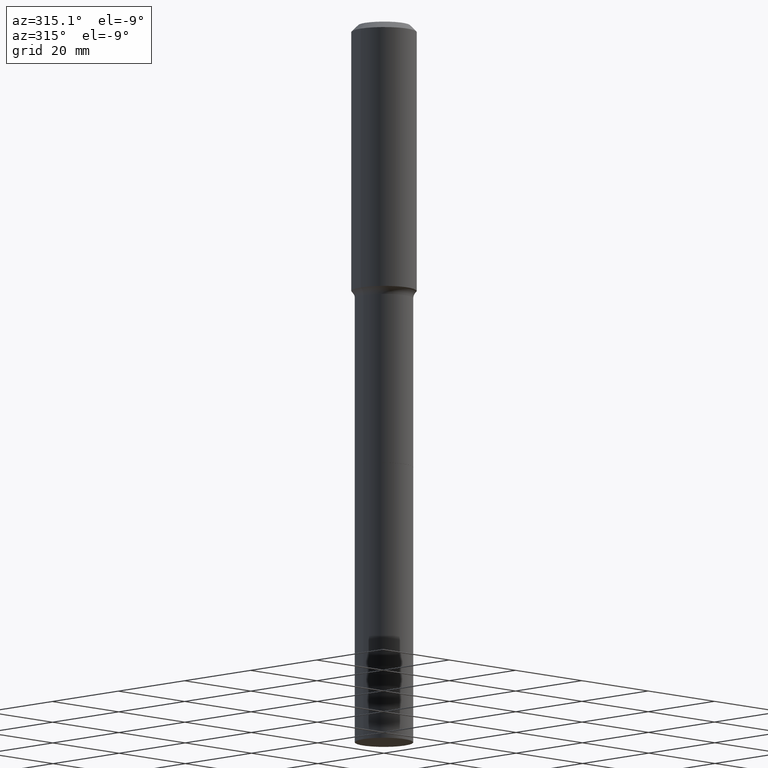
[diagram: clean part render]
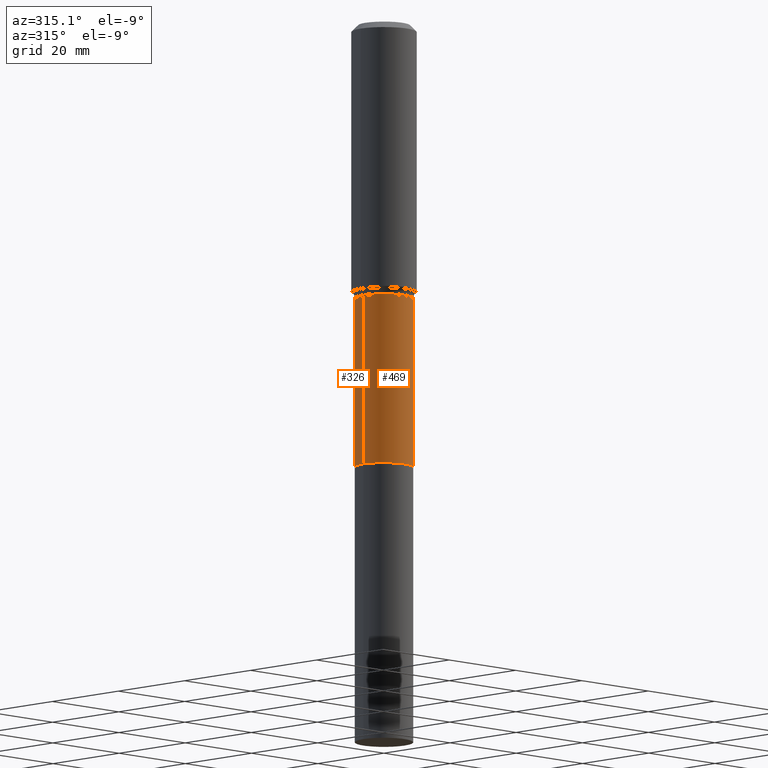
[diagram: same view with one multi-face feature highlighted, each face labeled with its STEP entity id]
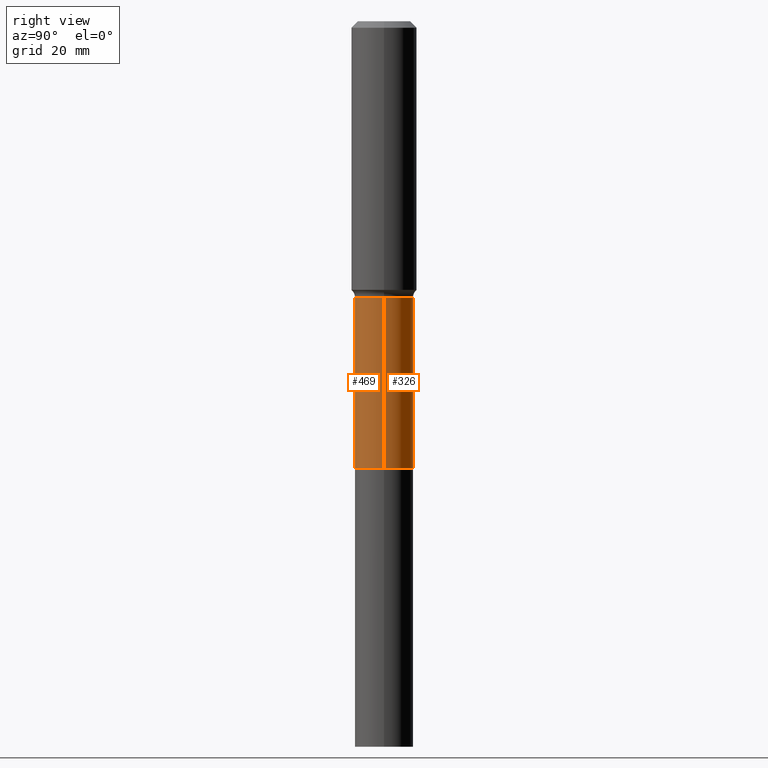
[diagram: same view with one multi-face feature highlighted, each face labeled with its STEP entity id]
A machine part, auxiliary view. The highlighted faces form ONE feature: a constant-radius fillet chain: 2 tangent blend faces with common blend radius 6.2497 mm. The faces share edges in the B-rep.
A second angle (right view) of the same feature is appended — it is thin or edge-on in the first view.
Their STEP definitions:
[1] entity #326 (Cylinder):
#18 = DIRECTION ( 'NONE',  ( -2.445468806185136597E-29, 3.491481338843145583E-15, 1.000000000000000000 ) ) ;
#19 = DIRECTION ( 'NONE',  ( -2.445468806185136597E-29, 3.491481338843145583E-15, 1.000000000000000000 ) ) ;
#23 = DIRECTION ( 'NONE',  ( -2.445468806185136877E-29, 3.491481338843145188E-15, 1.000000000000000000 ) ) ;
#25 = VERTEX_POINT ( 'NONE', #253 ) ;
#31 = VERTEX_POINT ( 'NONE', #168 ) ;
#53 = VECTOR ( 'NONE', #324, 39.37007874015748143 ) ;
#58 = DIRECTION ( 'NONE',  ( -2.445468806185136597E-29, 3.491481338843145583E-15, 1.000000000000000000 ) ) ;
#63 = ORIENTED_EDGE ( 'NONE', *, *, #178, .F. ) ;
#69 = CARTESIAN_POINT ( 'NONE',  ( 0.2460500000000000742, -1.484577865276104695E-14, -3.759899999999999576 ) ) ;
#80 = LINE ( 'NONE', #208, #53 ) ;
#97 = CARTESIAN_POINT ( 'NONE',  ( 9.194718164375493878E-29, -1.312762068591634082E-14, -3.759899999999999576 ) ) ;
#115 = ORIENTED_EDGE ( 'NONE', *, *, #316, .F. ) ;
#156 = ORIENTED_EDGE ( 'NONE', *, *, #499, .T. ) ;
#168 = CARTESIAN_POINT ( 'NONE',  ( -0.2460500000000000742, -8.869828072285101626E-15, -3.759899999999999576 ) ) ;
#178 = EDGE_CURVE ( 'NONE', #426, #25, #487, .T. ) ;
#186 = AXIS2_PLACEMENT_3D ( 'NONE', #353, #19, #509 ) ;
#196 = CARTESIAN_POINT ( 'NONE',  ( 0.2460499999999999632, -1.718157966844705541E-15, 1.199783295684589923E-29 ) ) ;
#203 = EDGE_CURVE ( 'NONE', #319, #31, #239, .T. ) ;
#208 = CARTESIAN_POINT ( 'NONE',  ( -0.2460499999999999632, 1.748290401337726246E-15, -1.210303978957219394E-29 ) ) ;
#239 = CIRCLE ( 'NONE', #332, 0.2460500000000000742 ) ;
#253 = CARTESIAN_POINT ( 'NONE',  ( -0.2460499999999998799, -8.869828072285103204E-15, -2.322400000000000020 ) ) ;
#315 = VECTOR ( 'NONE', #23, 39.37007874015748143 ) ;
#316 = EDGE_CURVE ( 'NONE', #319, #426, #458, .T. ) ;
#319 = VERTEX_POINT ( 'NONE', #69 ) ;
#324 = DIRECTION ( 'NONE',  ( -2.445468806185136877E-29, 3.491481338843145188E-15, 1.000000000000000000 ) ) ;
#326 = ADVANCED_FACE ( 'NONE', ( #425 ), #470, .T. ) ;
#329 = CARTESIAN_POINT ( 'NONE',  ( 5.679356755484361141E-29, -8.108616261329321631E-15, -2.322400000000000020 ) ) ;
#332 = AXIS2_PLACEMENT_3D ( 'NONE', #97, #18, #414 ) ;
#353 = CARTESIAN_POINT ( 'NONE',  ( 0.000000000000000000, 0.000000000000000000, 0.000000000000000000 ) ) ;
#358 = EDGE_LOOP ( 'NONE', ( #443, #156, #63, #115 ) ) ;
#366 = CARTESIAN_POINT ( 'NONE',  ( 0.2460499999999998799, -9.826774228174027764E-15, -2.322400000000000020 ) ) ;
#414 = DIRECTION ( 'NONE',  ( 1.000000000000000000, -6.982962677686264344E-15, 0.000000000000000000 ) ) ;
#425 = FACE_OUTER_BOUND ( 'NONE', #358, .T. ) ;
#426 = VERTEX_POINT ( 'NONE', #366 ) ;
#443 = ORIENTED_EDGE ( 'NONE', *, *, #203, .T. ) ;
#451 = DIRECTION ( 'NONE',  ( 1.000000000000000000, -6.982962677686269866E-15, 0.000000000000000000 ) ) ;
#458 = LINE ( 'NONE', #196, #315 ) ;
#462 = AXIS2_PLACEMENT_3D ( 'NONE', #329, #58, #451 ) ;
#470 = CYLINDRICAL_SURFACE ( 'NONE', #186, 0.2460499999999999632 ) ;
#487 = CIRCLE ( 'NONE', #462, 0.2460499999999998799 ) ;
#499 = EDGE_CURVE ( 'NONE', #31, #25, #80, .T. ) ;
#509 = DIRECTION ( 'NONE',  ( 1.000000000000000000, -6.982962677686265922E-15, 4.876176775795936353E-29 ) ) ;
[2] entity #469 (Cylinder):
#23 = DIRECTION ( 'NONE',  ( -2.445468806185136877E-29, 3.491481338843145188E-15, 1.000000000000000000 ) ) ;
#25 = VERTEX_POINT ( 'NONE', #253 ) ;
#31 = VERTEX_POINT ( 'NONE', #168 ) ;
#37 = DIRECTION ( 'NONE',  ( 1.000000000000000000, -6.982962677686265922E-15, 4.876176775795936353E-29 ) ) ;
#47 = ORIENTED_EDGE ( 'NONE', *, *, #316, .T. ) ;
#53 = VECTOR ( 'NONE', #324, 39.37007874015748143 ) ;
#67 = ORIENTED_EDGE ( 'NONE', *, *, #511, .T. ) ;
#69 = CARTESIAN_POINT ( 'NONE',  ( 0.2460500000000000742, -1.484577865276104695E-14, -3.759899999999999576 ) ) ;
#80 = LINE ( 'NONE', #208, #53 ) ;
#90 = DIRECTION ( 'NONE',  ( 1.000000000000000000, -6.982962677686264344E-15, 0.000000000000000000 ) ) ;
#128 = DIRECTION ( 'NONE',  ( -2.445468806185136597E-29, 3.491481338843145583E-15, 1.000000000000000000 ) ) ;
#168 = CARTESIAN_POINT ( 'NONE',  ( -0.2460500000000000742, -8.869828072285101626E-15, -3.759899999999999576 ) ) ;
#196 = CARTESIAN_POINT ( 'NONE',  ( 0.2460499999999999632, -1.718157966844705541E-15, 1.199783295684589923E-29 ) ) ;
#208 = CARTESIAN_POINT ( 'NONE',  ( -0.2460499999999999632, 1.748290401337726246E-15, -1.210303978957219394E-29 ) ) ;
#210 = CYLINDRICAL_SURFACE ( 'NONE', #285, 0.2460499999999999632 ) ;
#237 = ORIENTED_EDGE ( 'NONE', *, *, #418, .F. ) ;
#253 = CARTESIAN_POINT ( 'NONE',  ( -0.2460499999999998799, -8.869828072285103204E-15, -2.322400000000000020 ) ) ;
#264 = AXIS2_PLACEMENT_3D ( 'NONE', #480, #282, #320 ) ;
#282 = DIRECTION ( 'NONE',  ( -2.445468806185136597E-29, 3.491481338843145583E-15, 1.000000000000000000 ) ) ;
#285 = AXIS2_PLACEMENT_3D ( 'NONE', #397, #128, #37 ) ;
#312 = ORIENTED_EDGE ( 'NONE', *, *, #499, .F. ) ;
#315 = VECTOR ( 'NONE', #23, 39.37007874015748143 ) ;
#316 = EDGE_CURVE ( 'NONE', #319, #426, #458, .T. ) ;
#318 = FACE_OUTER_BOUND ( 'NONE', #361, .T. ) ;
#319 = VERTEX_POINT ( 'NONE', #69 ) ;
#320 = DIRECTION ( 'NONE',  ( 1.000000000000000000, -6.982962677686269866E-15, 0.000000000000000000 ) ) ;
#324 = DIRECTION ( 'NONE',  ( -2.445468806185136877E-29, 3.491481338843145188E-15, 1.000000000000000000 ) ) ;
#352 = CIRCLE ( 'NONE', #497, 0.2460500000000000742 ) ;
#361 = EDGE_LOOP ( 'NONE', ( #312, #67, #47, #237 ) ) ;
#363 = CARTESIAN_POINT ( 'NONE',  ( 9.194718164375493878E-29, -1.312762068591634082E-14, -3.759899999999999576 ) ) ;
#366 = CARTESIAN_POINT ( 'NONE',  ( 0.2460499999999998799, -9.826774228174027764E-15, -2.322400000000000020 ) ) ;
#397 = CARTESIAN_POINT ( 'NONE',  ( 0.000000000000000000, 0.000000000000000000, 0.000000000000000000 ) ) ;
#418 = EDGE_CURVE ( 'NONE', #25, #426, #464, .T. ) ;
#426 = VERTEX_POINT ( 'NONE', #366 ) ;
#458 = LINE ( 'NONE', #196, #315 ) ;
#464 = CIRCLE ( 'NONE', #264, 0.2460499999999998799 ) ;
#469 = ADVANCED_FACE ( 'NONE', ( #318 ), #210, .T. ) ;
#480 = CARTESIAN_POINT ( 'NONE',  ( 5.679356755484361141E-29, -8.108616261329321631E-15, -2.322400000000000020 ) ) ;
#482 = DIRECTION ( 'NONE',  ( -2.445468806185136597E-29, 3.491481338843145583E-15, 1.000000000000000000 ) ) ;
#497 = AXIS2_PLACEMENT_3D ( 'NONE', #363, #482, #90 ) ;
#499 = EDGE_CURVE ( 'NONE', #31, #25, #80, .T. ) ;
#511 = EDGE_CURVE ( 'NONE', #31, #319, #352, .T. ) ;